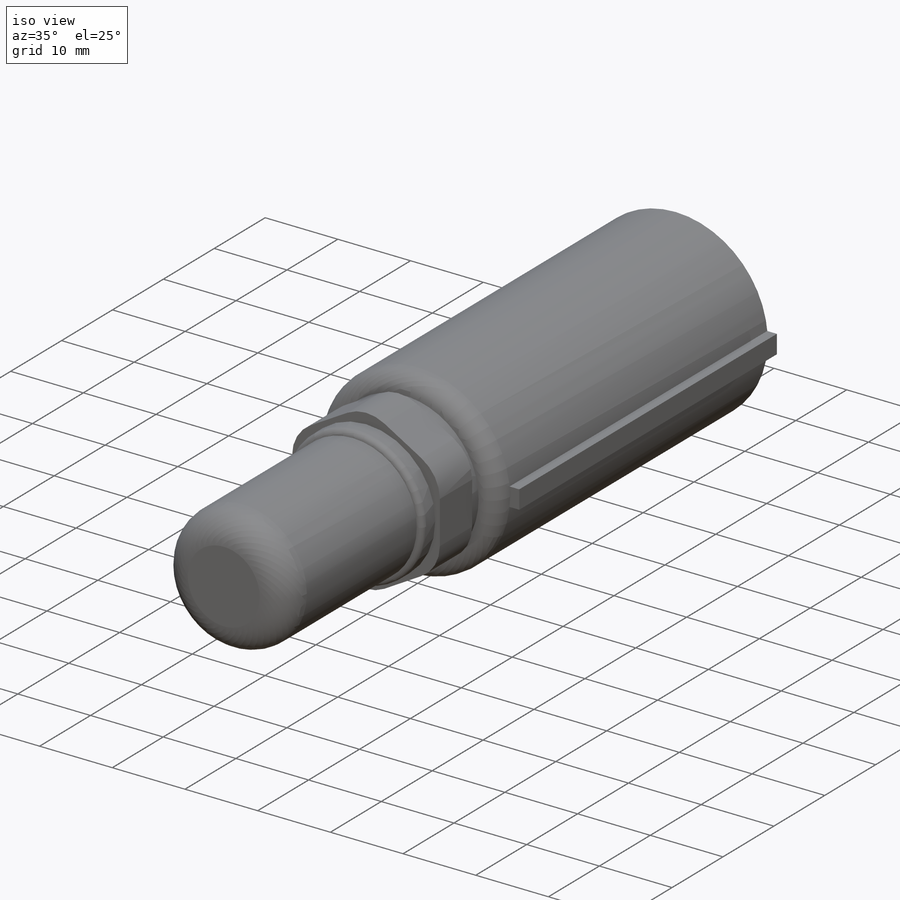
[diagram: iso view]
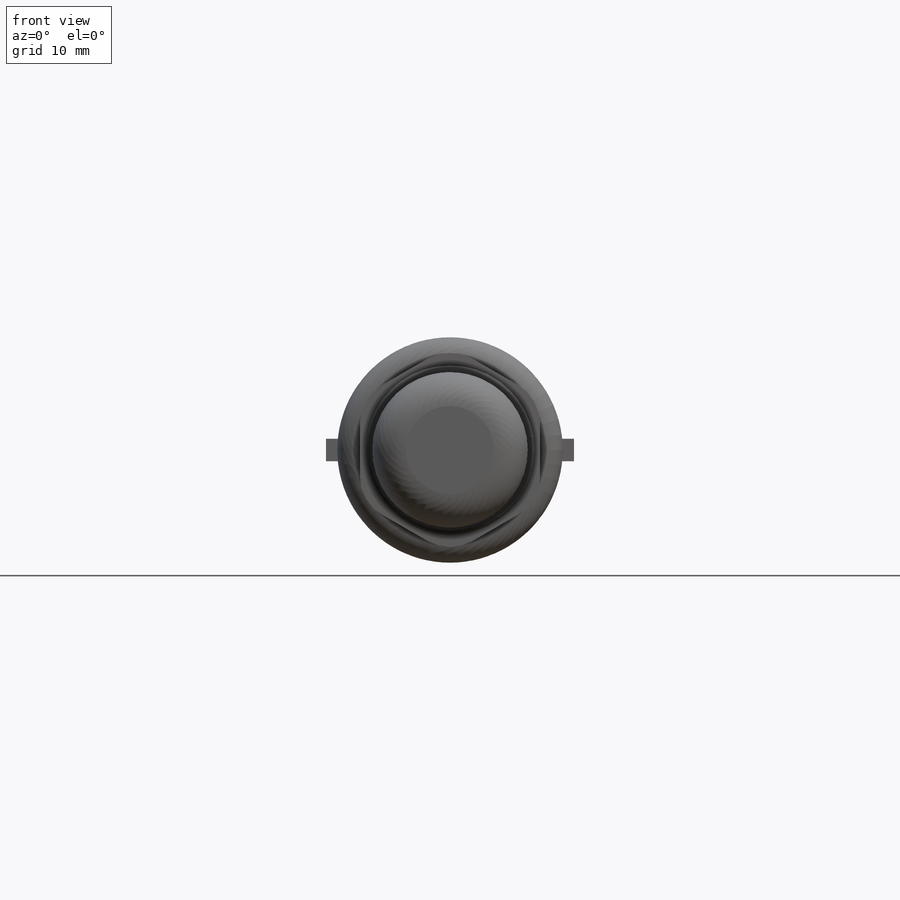
[diagram: front view]
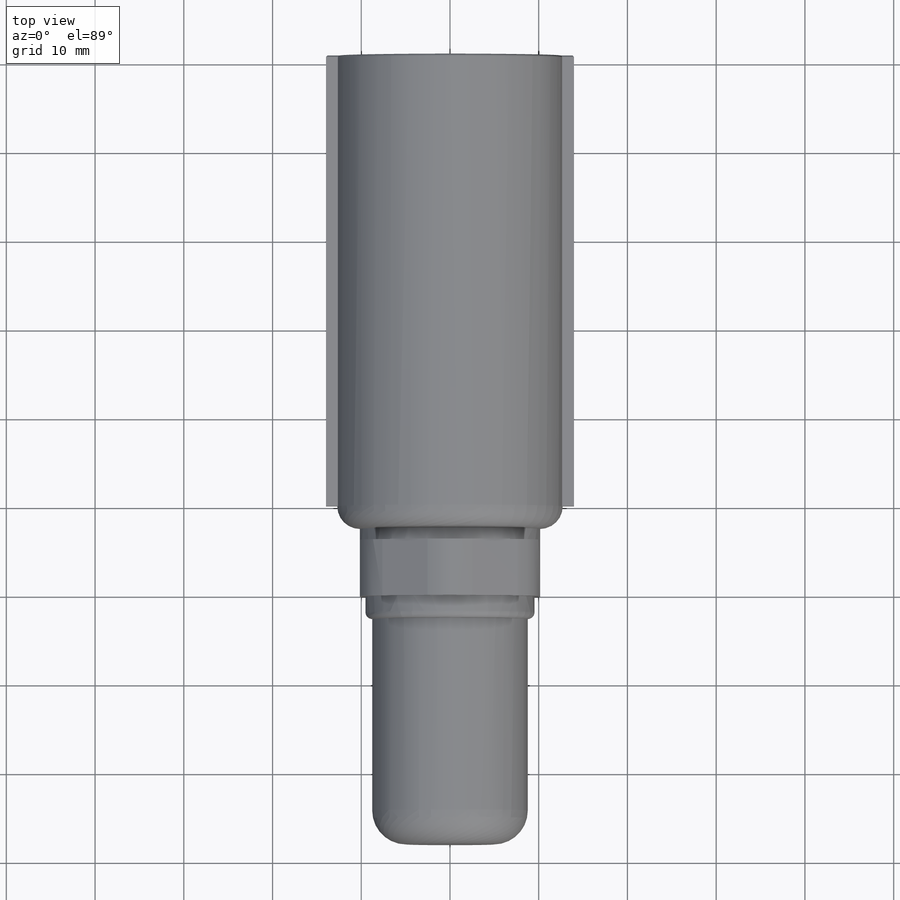
[diagram: top view]
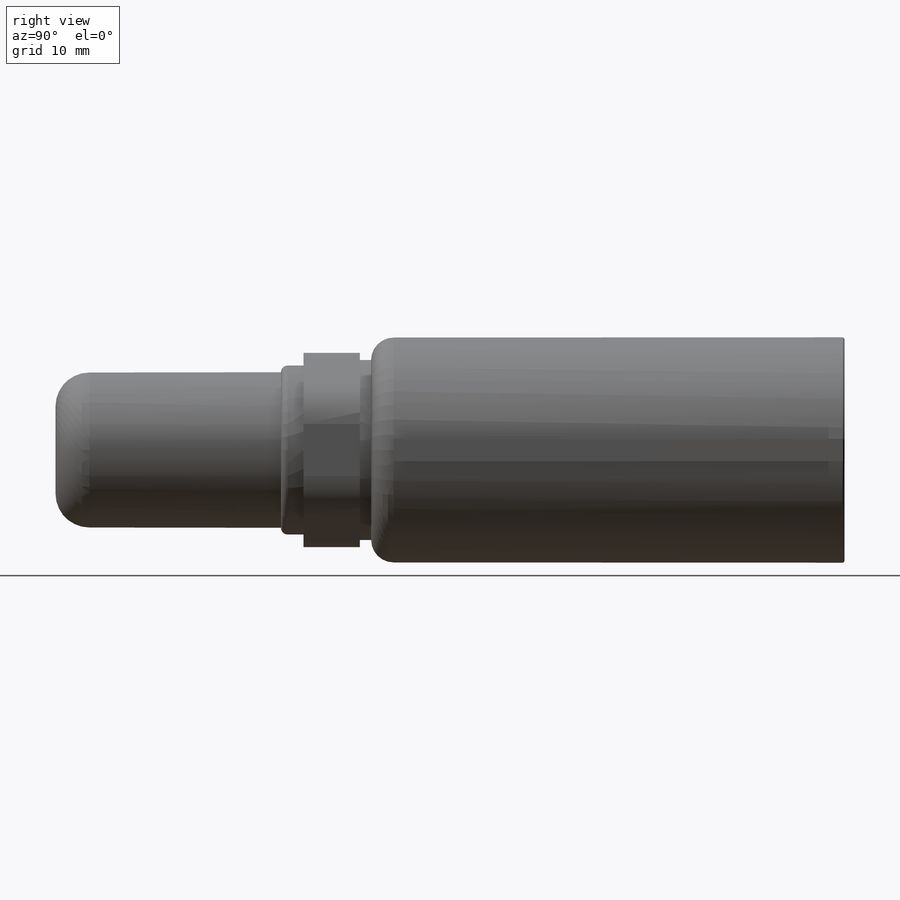
[diagram: right view]
SOLIDWORKS PART (.sldprt)
format: sldprt  version: not decoded by parser v0  size: 351,232 bytes
history: native  units: mm
features: sketch x6, extrude x6, fillet x5, material x1 (+13 scaffold rows collapsed)
feature tree (31):
  scaffold x13  (default folders/planes/origin — collapsed)
  material  "Material <not specified>"
  sketch  "Sketch1"  dims[D1=25.4mm]
  extrude  "Boss-Extrude1"  Depth=50.8mm
  fillet  "Fillet1"  Radius=2.54mm
  sketch  "Sketch2"  dims[D1=20.32mm]
  extrude  "Boss-Extrude2"  Depth=1.27mm
  sketch  "Sketch3"  dims[D1=12.7mm]
  extrude  "Boss-Extrude3"  Depth=6.35mm
  fillet  "Fillet2"  Radius=5.08mm
  sketch  "Sketch4"  dims[D1=19.05mm]
  extrude  "Boss-Extrude4"  Depth=2.54mm
  fillet  "Fillet3"  Radius=0.762mm
  sketch  "Sketch5"
  extrude  "Boss-Extrude5"  Depth=25.4mm
  fillet  "Fillet4"  Radius=3.81mm
  sketch  "Sketch6"  dims[D1=27.94mm D2=2.54mm]
  extrude  "Boss-Extrude6"  Depth=50.8mm
  fillet  "Fillet5"  Radius=0.254mm
decode coverage: 16 of 17 modeling features carry decoded parameters
note: suppression state not decoded; provenance and decode notes live in map.json
